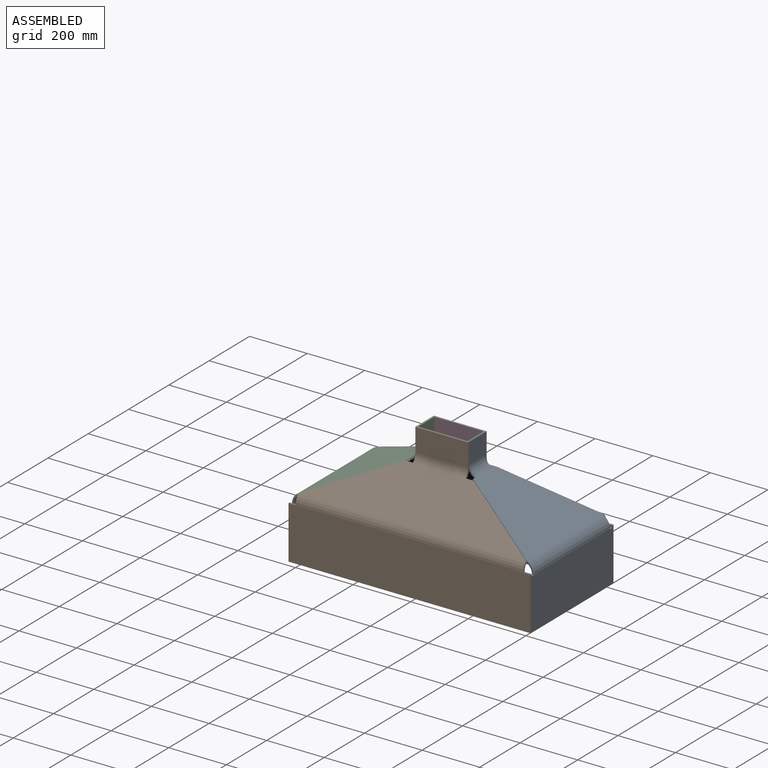
[diagram: assembled view]
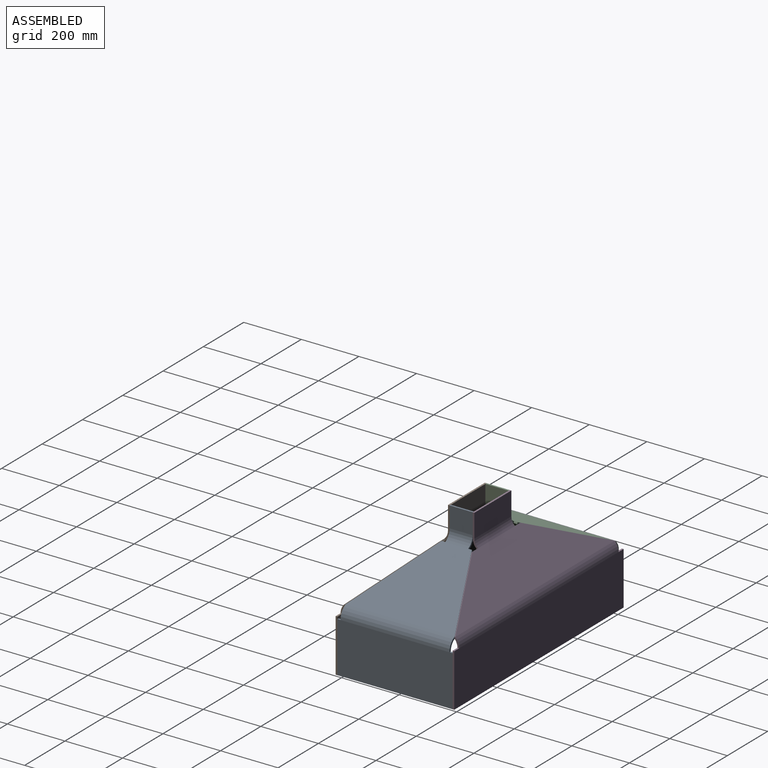
[diagram: assembled view, second angle]
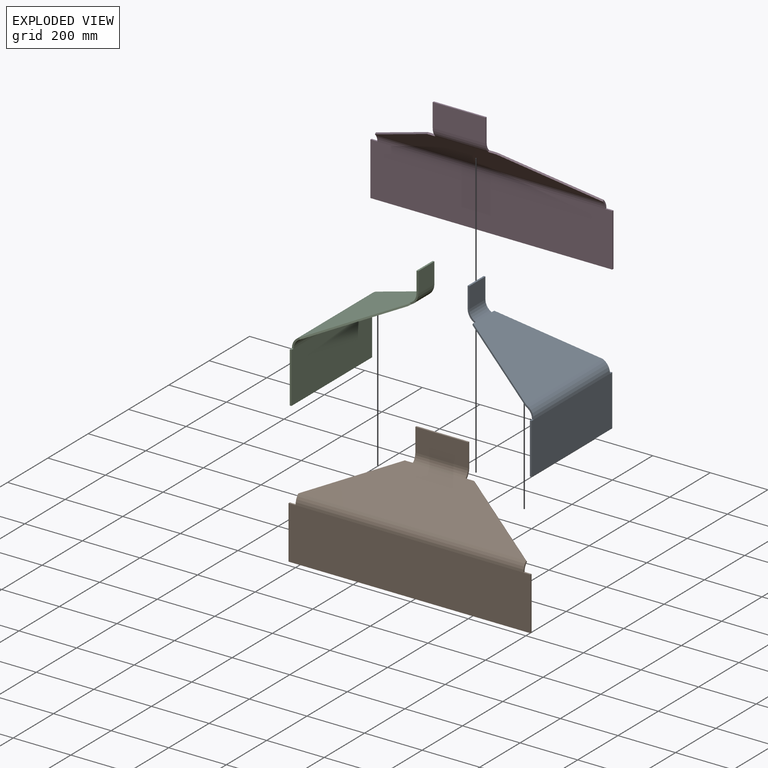
[diagram: exploded view]
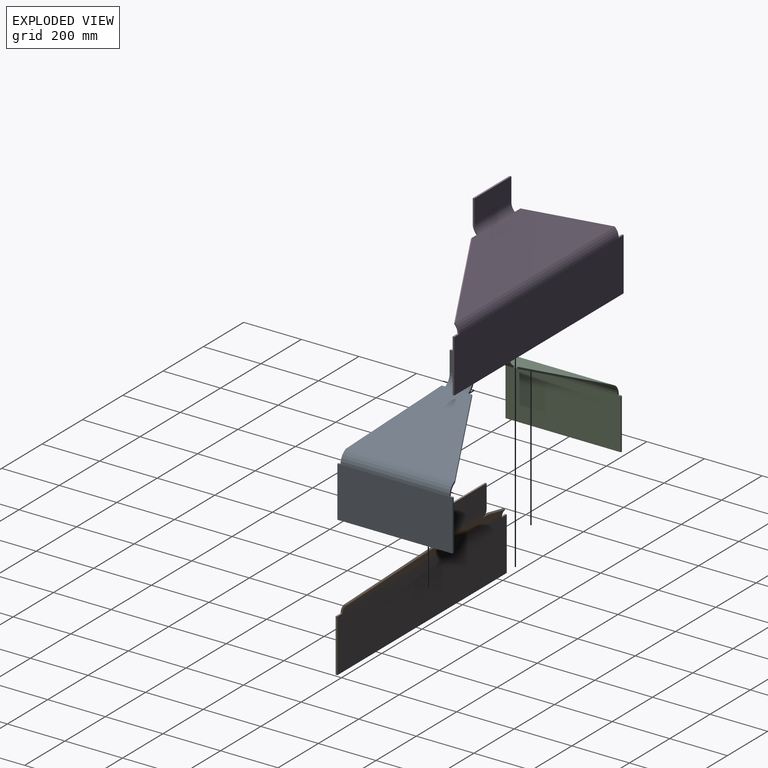
[diagram: exploded view, second angle]
ASSEMBLY  parts=4 mates=3
PART A: 26 faces, bbox 334.3x400x450 mm
  f0: plane 10.67x6mm, normal (0,0,-1), area 64mm2, adj f2,f5,f6,f23
  f1: plane 399.96x6mm, normal (0,0,1), area 2399.8mm2, adj f2,f4,f5,f6
  f2: plane 175.9x6mm, normal (0,-1,0), area 1055.4mm2, adj f0,f1,f5,f6
  f3: plane 10.67x6mm, normal (0,0,-1), area 64mm2, adj f4,f5,f6,f22
  f4: plane 175.9x6mm, normal (0,1,0), area 1055.4mm2, adj f1,f3,f5,f6
  f5: plane 399.96x175.9mm, normal (1,0,0), area 70354.3mm2, adj f0,f1,f2,f3,f4,f24
  f6: plane 399.96x175.9mm, normal (-1,0,0), area 70354.3mm2, adj f0,f1,f2,f3,f4,f25
  f7: plane 12.4x5.46mm, normal (-0.91,0,-0.42), area 74.4mm2, adj f8,f11,f12,f18
  f8: plane 283.5x136.93mm, normal (-0.37,0.91,-0.17), area 2027.6mm2, adj f7,f11,f12,f22
  f9: plane 283.5x136.93mm, normal (-0.37,-0.91,-0.17), area 2027.6mm2, adj f10,f11,f12,f23
  f10: plane 12.4x5.46mm, normal (-0.91,0,-0.42), area 74.4mm2, adj f9,f11,f12,f19
  f11: plane 378.61x281.01mm, normal (0.42,0,-0.91), area 74665.4mm2, adj f7,f8,f9,f10,f21,f24
  f12: plane 378.61x281.01mm, normal (-0.42,0,0.91), area 74665.4mm2, adj f7,f8,f9,f10,f20,f25
  f13: plane 79.96x6mm, normal (0,0,-1), area 479.8mm2, adj f14,f15,f16,f17
  f14: plane 72.05x6mm, normal (0,1,0), area 432.3mm2, adj f13,f16,f17,f18
  f15: plane 72.05x6mm, normal (0,-1,0), area 432.3mm2, adj f13,f16,f17,f19
  f16: plane 79.96x72.05mm, normal (1,0,0), area 5761mm2, adj f13,f14,f15,f21
  f17: plane 79.96x72.05mm, normal (-1,0,0), area 5761mm2, adj f13,f14,f15,f20
  f18: plane 39.57x27.92mm, normal (0,1,0), area 277.6mm2, adj f7,f14,f20,f21
  f19: plane 39.57x27.92mm, normal (0,-1,0), area 277.6mm2, adj f10,f15,f20,f21
  f20: cylinder r=43.5mm len=79.96mm, axis (0,1,0), area 3973.1mm2, adj f12,f17,f18,f19
  f21: cylinder r=37.5mm len=79.96mm, axis (0,1,0), area 3425.1mm2, adj f11,f16,f18,f19
  f22: plane 39.57x27.92mm, normal (0,1,0), area 277.6mm2, adj f3,f8,f24,f25
  f23: plane 39.57x27.92mm, normal (0,-1,0), area 277.6mm2, adj f0,f9,f24,f25
  f24: cylinder r=43.5mm len=378.61mm, axis (0,1,0), area 18812.9mm2, adj f5,f11,f22,f23
  f25: cylinder r=37.5mm len=378.61mm, axis (0,1,0), area 16218mm2, adj f6,f12,f22,f23
PART B: 26 faces, bbox 840x166x450 mm
  f0: plane 24.32x6mm, normal (0,0,-1), area 145.9mm2, adj f2,f5,f6,f23
  f1: plane 839.96x6mm, normal (0,0,1), area 5039.8mm2, adj f2,f4,f5,f6
  f2: plane 183.75x6mm, normal (1,0,0), area 1102.5mm2, adj f0,f1,f5,f6
  f3: plane 24.32x6mm, normal (0,0,-1), area 145.9mm2, adj f4,f5,f6,f22
  f4: plane 183.75x6mm, normal (-1,0,0), area 1102.5mm2, adj f1,f3,f5,f6
  f5: plane 839.96x183.75mm, normal (0,1,0), area 154345.8mm2, adj f0,f1,f2,f3,f4,f24
  f6: plane 839.96x183.75mm, normal (0,-1,0), area 154345.8mm2, adj f0,f1,f2,f3,f4,f25
  f7: plane 28.21x4.38mm, normal (0,-0.73,-0.68), area 169.3mm2, adj f8,f11,f12,f18
  f8: plane 275.81x138.5mm, normal (-0.56,-0.61,-0.57), area 1990.1mm2, adj f7,f11,f12,f22
  f9: plane 275.81x138.5mm, normal (0.56,-0.61,-0.57), area 1990.1mm2, adj f10,f11,f12,f23
  f10: plane 28.21x4.38mm, normal (0,-0.73,-0.68), area 169.3mm2, adj f9,f11,f12,f19
  f11: plane 791.31x134.4mm, normal (0,0.68,-0.73), area 94968.1mm2, adj f7,f8,f9,f10,f21,f24
  f12: plane 791.31x134.4mm, normal (0,-0.68,0.73), area 94968.1mm2, adj f7,f8,f9,f10,f20,f25
  f13: plane 183.26x6mm, normal (0,0,-1), area 1099.6mm2, adj f14,f15,f16,f17
  f14: plane 81.15x6mm, normal (-1,0,0), area 486.9mm2, adj f13,f16,f17,f18
  f15: plane 81.15x6mm, normal (1,0,0), area 486.9mm2, adj f13,f16,f17,f19
  f16: plane 183.26x81.15mm, normal (0,1,0), area 14872.6mm2, adj f13,f14,f15,f21
  f17: plane 183.26x81.15mm, normal (0,-1,0), area 14872.6mm2, adj f13,f14,f15,f20
  f18: plane 31.74x17.85mm, normal (-1,0,0), area 198.7mm2, adj f7,f14,f20,f21
  f19: plane 31.74x17.85mm, normal (1,0,0), area 198.7mm2, adj f10,f15,f20,f21
  f20: cylinder r=43.5mm len=183.26mm, axis (-1,0,0), area 6518.2mm2, adj f12,f17,f18,f19
  f21: cylinder r=37.5mm len=183.26mm, axis (-1,0,0), area 5619.2mm2, adj f11,f16,f18,f19
  f22: plane 31.74x17.85mm, normal (-1,0,0), area 198.7mm2, adj f3,f8,f24,f25
  f23: plane 31.74x17.85mm, normal (1,0,0), area 198.7mm2, adj f0,f9,f24,f25
  f24: cylinder r=43.5mm len=791.31mm, axis (-1,0,0), area 28145mm2, adj f5,f11,f22,f23
  f25: cylinder r=37.5mm len=791.31mm, axis (-1,0,0), area 24262.9mm2, adj f6,f12,f22,f23
PART C: 26 faces, bbox 334.3x400x450 mm
  f0: plane 10.67x6mm, normal (0,0,-1), area 64mm2, adj f2,f5,f6,f22
  f1: plane 399.96x6mm, normal (0,0,1), area 2399.8mm2, adj f2,f4,f5,f6
  f2: plane 175.9x6mm, normal (0,1,0), area 1055.4mm2, adj f0,f1,f5,f6
  f3: plane 10.67x6mm, normal (0,0,-1), area 64mm2, adj f4,f5,f6,f23
  f4: plane 175.9x6mm, normal (0,-1,0), area 1055.4mm2, adj f1,f3,f5,f6
  f5: plane 399.96x175.9mm, normal (-1,0,0), area 70354.3mm2, adj f0,f1,f2,f3,f4,f24
  f6: plane 399.96x175.9mm, normal (1,0,0), area 70354.3mm2, adj f0,f1,f2,f3,f4,f25
  f7: plane 12.4x5.46mm, normal (0.91,0,-0.42), area 74.4mm2, adj f8,f11,f12,f19
  f8: plane 283.5x136.93mm, normal (0.37,-0.91,-0.17), area 2027.6mm2, adj f7,f11,f12,f23
  f9: plane 283.5x136.93mm, normal (0.37,0.91,-0.17), area 2027.6mm2, adj f10,f11,f12,f22
  f10: plane 12.4x5.46mm, normal (0.91,0,-0.42), area 74.4mm2, adj f9,f11,f12,f18
  f11: plane 378.61x281.01mm, normal (-0.42,0,-0.91), area 74665.4mm2, adj f7,f8,f9,f10,f21,f24
  f12: plane 378.61x281.01mm, normal (0.42,0,0.91), area 74665.4mm2, adj f7,f8,f9,f10,f20,f25
  f13: plane 79.96x6mm, normal (0,0,-1), area 479.8mm2, adj f14,f15,f16,f17
  f14: plane 72.05x6mm, normal (0,-1,0), area 432.3mm2, adj f13,f16,f17,f19
  f15: plane 72.05x6mm, normal (0,1,0), area 432.3mm2, adj f13,f16,f17,f18
  f16: plane 79.96x72.05mm, normal (-1,0,0), area 5761mm2, adj f13,f14,f15,f21
  f17: plane 79.96x72.05mm, normal (1,0,0), area 5761mm2, adj f13,f14,f15,f20
  f18: plane 39.57x27.92mm, normal (0,1,0), area 277.6mm2, adj f10,f15,f20,f21
  f19: plane 39.57x27.92mm, normal (0,-1,0), area 277.6mm2, adj f7,f14,f20,f21
  f20: cylinder r=43.5mm len=79.96mm, axis (0,1,0), area 3973.1mm2, adj f12,f17,f18,f19
  f21: cylinder r=37.5mm len=79.96mm, axis (0,1,0), area 3425.1mm2, adj f11,f16,f18,f19
  f22: plane 39.57x27.92mm, normal (0,1,0), area 277.6mm2, adj f0,f9,f24,f25
  f23: plane 39.57x27.92mm, normal (0,-1,0), area 277.6mm2, adj f3,f8,f24,f25
  f24: cylinder r=43.5mm len=378.61mm, axis (0,1,0), area 18812.9mm2, adj f5,f11,f22,f23
  f25: cylinder r=37.5mm len=378.61mm, axis (0,1,0), area 16218mm2, adj f6,f12,f22,f23
PART D: 26 faces, bbox 840x166x450 mm
  f0: plane 24.32x6mm, normal (0,0,-1), area 145.9mm2, adj f2,f5,f6,f22
  f1: plane 839.96x6mm, normal (0,0,1), area 5039.8mm2, adj f2,f4,f5,f6
  f2: plane 183.75x6mm, normal (-1,0,0), area 1102.5mm2, adj f0,f1,f5,f6
  f3: plane 24.32x6mm, normal (0,0,-1), area 145.9mm2, adj f4,f5,f6,f23
  f4: plane 183.75x6mm, normal (1,0,0), area 1102.5mm2, adj f1,f3,f5,f6
  f5: plane 839.96x183.75mm, normal (0,-1,0), area 154345.8mm2, adj f0,f1,f2,f3,f4,f24
  f6: plane 839.96x183.75mm, normal (0,1,0), area 154345.8mm2, adj f0,f1,f2,f3,f4,f25
  f7: plane 28.21x4.38mm, normal (0,0.73,-0.68), area 169.3mm2, adj f10,f11,f12,f19
  f8: plane 275.81x138.5mm, normal (-0.56,0.61,-0.57), area 1990.1mm2, adj f9,f11,f12,f22
  f9: plane 28.21x4.38mm, normal (0,0.73,-0.68), area 169.3mm2, adj f8,f11,f12,f18
  f10: plane 275.81x138.5mm, normal (0.56,0.61,-0.57), area 1990.1mm2, adj f7,f11,f12,f23
  f11: plane 791.31x134.4mm, normal (0,-0.68,-0.73), area 94968.1mm2, adj f7,f8,f9,f10,f21,f24
  f12: plane 791.31x134.4mm, normal (0,0.68,0.73), area 94968.1mm2, adj f7,f8,f9,f10,f20,f25
  f13: plane 183.26x6mm, normal (0,0,-1), area 1099.6mm2, adj f14,f15,f16,f17
  f14: plane 81.15x6mm, normal (1,0,0), area 486.9mm2, adj f13,f16,f17,f19
  f15: plane 81.15x6mm, normal (-1,0,0), area 486.9mm2, adj f13,f16,f17,f18
  f16: plane 183.26x81.15mm, normal (0,-1,0), area 14872.6mm2, adj f13,f14,f15,f21
  f17: plane 183.26x81.15mm, normal (0,1,0), area 14872.6mm2, adj f13,f14,f15,f20
  f18: plane 31.74x17.85mm, normal (-1,0,0), area 198.7mm2, adj f9,f15,f20,f21
  f19: plane 31.74x17.85mm, normal (1,0,0), area 198.7mm2, adj f7,f14,f20,f21
  f20: cylinder r=43.5mm len=183.26mm, axis (-1,0,0), area 6518.2mm2, adj f12,f17,f18,f19
  f21: cylinder r=37.5mm len=183.26mm, axis (-1,0,0), area 5619.2mm2, adj f11,f16,f18,f19
  f22: plane 31.74x17.85mm, normal (-1,0,0), area 198.7mm2, adj f0,f8,f24,f25
  f23: plane 31.74x17.85mm, normal (1,0,0), area 198.7mm2, adj f3,f10,f24,f25
  f24: cylinder r=43.5mm len=791.31mm, axis (-1,0,0), area 28145mm2, adj f5,f11,f22,f23
  f25: cylinder r=37.5mm len=791.31mm, axis (-1,0,0), area 24262.9mm2, adj f6,f12,f22,f23
PLACE A rot(axis=(1,0,0),180deg) t=(-6.02,799.98,1000)mm
PLACE B rot(axis=(1,0,0),180deg) t=(0,800,1000)mm
PLACE C rot(axis=(1,0,0),180deg) t=(6.02,799.98,1000)mm
PLACE D rot(axis=(1,0,0),180deg) t=(0,799.96,1000)mm
MATE fastened A.f1 <-> B.f1  axis (0,0,-1) through (419.98,600,800)mm
MATE fastened B.f1 <-> C.f1  axis (0,0,-1) through (-419.98,600,800)mm
MATE fastened D.f1 <-> C.f1  axis (0,0,-1) through (-419.98,999.96,800)mm
